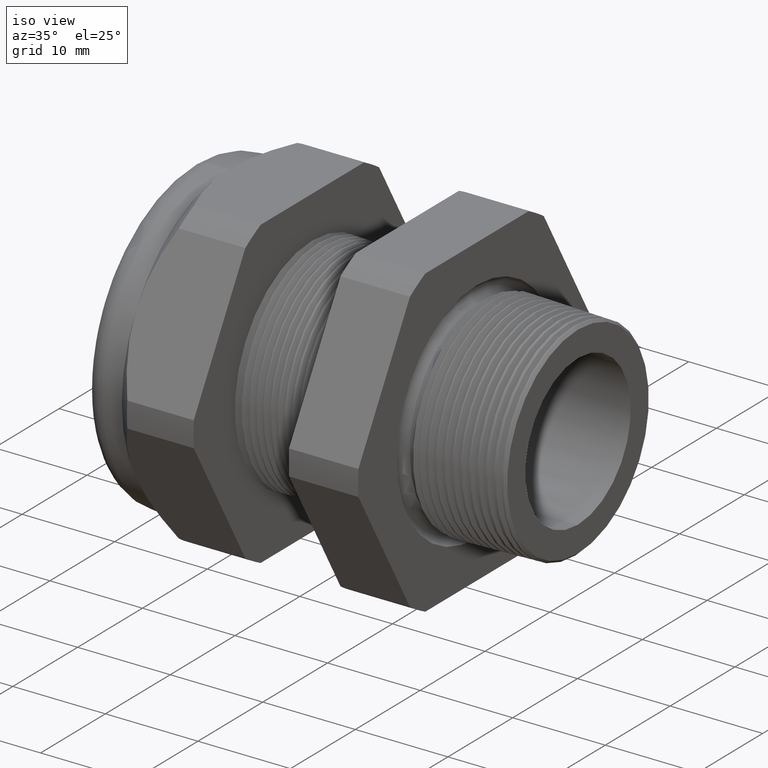
[diagram: clean part render]
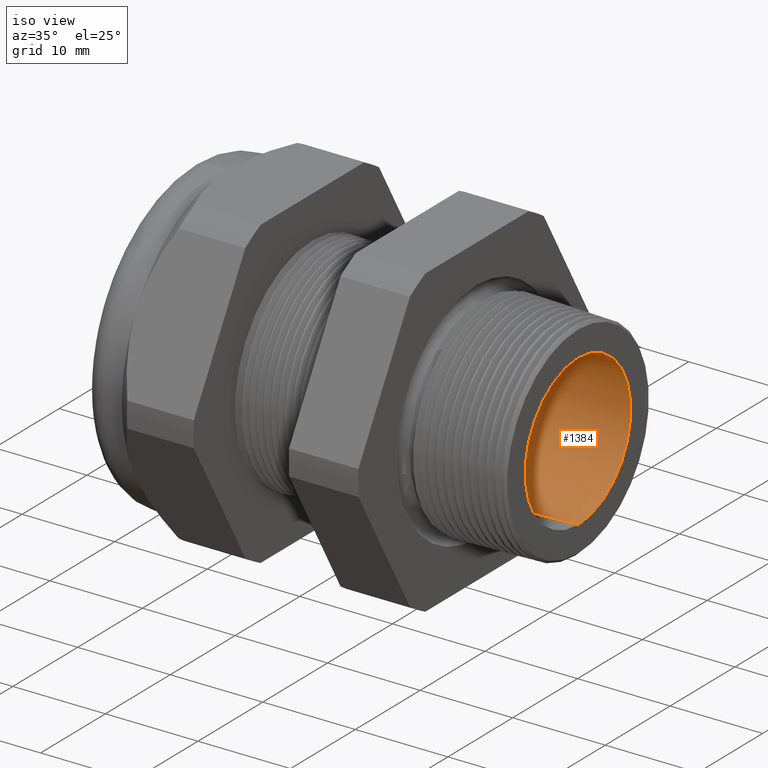
[diagram: same view with one face highlighted and labeled with its STEP entity id]
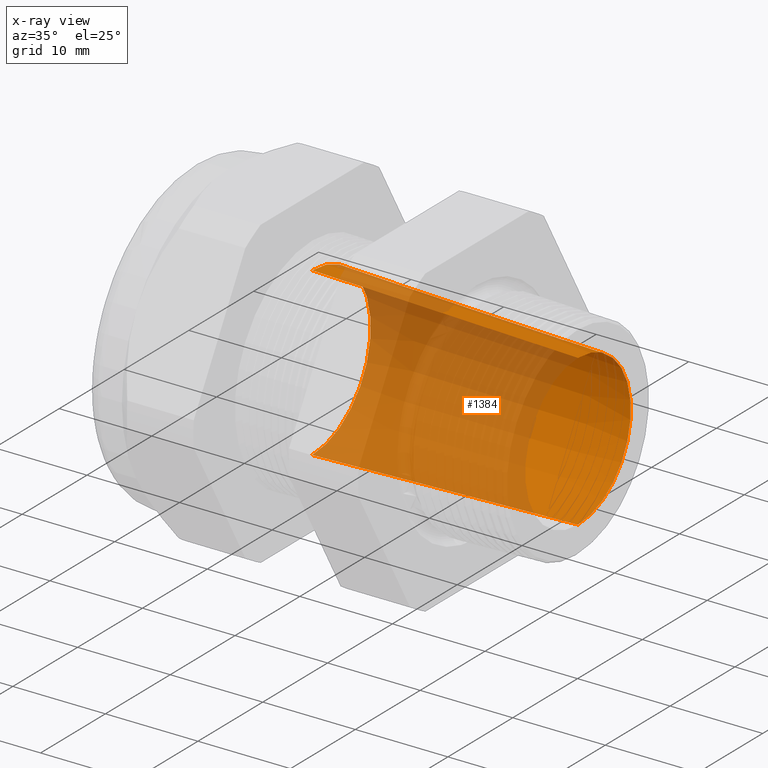
[diagram: x-ray of the same camera — body ghosted, the highlighted face saturated]
A machine part, iso view. The second image highlights one B-rep face of the part: STEP entity #1384.
The next image is the same camera in x-ray: the body ghosted, the highlighted face saturated — about 69% of this face is hidden behind the body in this view.
In plain terms, the highlighted conical surface has half-angle 1.753 deg.
Its self-contained STEP definition (entity closure, byte-faithful):
#719 = VERTEX_POINT ( 'NONE', #3280 ) ;
#720 = VERTEX_POINT ( 'NONE', #3279 ) ;
#775 = EDGE_CURVE ( 'NONE', #720, #776, #3365, .T. ) ;
#776 = VERTEX_POINT ( 'NONE', #3361 ) ;
#779 = VERTEX_POINT ( 'NONE', #3355 ) ;
#781 = EDGE_CURVE ( 'NONE', #719, #779, #3354, .T. ) ;
#1383 = EDGE_CURVE ( 'NONE', #776, #779, #4569, .T. ) ;
#1384 = ADVANCED_FACE ( 'NONE', ( #4564 ), #4563, .F. ) ;
#1385 = EDGE_LOOP ( 'NONE', ( #1386, #1387, #1389, #1390 ) ) ;
#1386 = ORIENTED_EDGE ( 'NONE', *, *, #775, .F. ) ;
#1387 = ORIENTED_EDGE ( 'NONE', *, *, #1388, .T. ) ;
#1388 = EDGE_CURVE ( 'NONE', #720, #719, #4562, .T. ) ;
#1389 = ORIENTED_EDGE ( 'NONE', *, *, #781, .T. ) ;
#1390 = ORIENTED_EDGE ( 'NONE', *, *, #1383, .F. ) ;
#3279 = CARTESIAN_POINT ( 'NONE',  ( 0.1200000000000000200, 4.135642411978520400E-017, -0.3204016610924743100 ) ) ;
#3280 = CARTESIAN_POINT ( 'NONE',  ( 0.1200000000000000200, 0.0000000000000000000, 0.3204016610924743100 ) ) ;
#3351 = DIRECTION ( 'NONE',  ( -0.9995318591926351000, 0.0000000000000000000, 0.03059513783126741000 ) ) ;
#3352 = VECTOR ( 'NONE', #3351, 39.37007874015748900 ) ;
#3353 = CARTESIAN_POINT ( 'NONE',  ( -1.010314960629921100, 0.0000000000000000000, 0.3549999999999999800 ) ) ;
#3354 = LINE ( 'NONE', #3353, #3352 ) ;
#3355 = CARTESIAN_POINT ( 'NONE',  ( -1.010314960629921100, 4.347496136973103500E-017, 0.3549999999999999800 ) ) ;
#3361 = CARTESIAN_POINT ( 'NONE',  ( -1.010314960629921100, 0.0000000000000000000, -0.3549999999999999800 ) ) ;
#3362 = DIRECTION ( 'NONE',  ( -0.9995318591926351000, 3.746823761453372400E-018, -0.03059513783126741000 ) ) ;
#3363 = VECTOR ( 'NONE', #3362, 39.37007874015748900 ) ;
#3364 = CARTESIAN_POINT ( 'NONE',  ( -1.010314960629921100, 4.347496136973103500E-017, -0.3549999999999999800 ) ) ;
#3365 = LINE ( 'NONE', #3364, #3363 ) ;
#4554 = DIRECTION ( 'NONE',  ( 0.0000000000000000000, 0.0000000000000000000, -1.000000000000000000 ) ) ;
#4555 = DIRECTION ( 'NONE',  ( 1.000000000000000000, 0.0000000000000000000, 0.0000000000000000000 ) ) ;
#4556 = CARTESIAN_POINT ( 'NONE',  ( 0.1200000000000000200, 0.0000000000000000000, 0.0000000000000000000 ) ) ;
#4557 = AXIS2_PLACEMENT_3D ( 'NONE', #4556, #4555, #4554 ) ;
#4558 = DIRECTION ( 'NONE',  ( 0.0000000000000000000, 0.0000000000000000000, 1.000000000000000000 ) ) ;
#4559 = DIRECTION ( 'NONE',  ( -1.000000000000000000, 0.0000000000000000000, 0.0000000000000000000 ) ) ;
#4560 = CARTESIAN_POINT ( 'NONE',  ( -1.010314960629921100, 0.0000000000000000000, 0.0000000000000000000 ) ) ;
#4561 = AXIS2_PLACEMENT_3D ( 'NONE', #4560, #4559, #4558 ) ;
#4562 = CIRCLE ( 'NONE', #4557, 0.3204016610924743100 ) ;
#4563 = CONICAL_SURFACE ( 'NONE', #4561, 0.3549999999999999800, 0.03059991300296905500 ) ;
#4564 = FACE_OUTER_BOUND ( 'NONE', #1385, .T. ) ;
#4565 = DIRECTION ( 'NONE',  ( 0.0000000000000000000, 0.0000000000000000000, -1.000000000000000000 ) ) ;
#4566 = DIRECTION ( 'NONE',  ( 1.000000000000000000, 0.0000000000000000000, 0.0000000000000000000 ) ) ;
#4567 = CARTESIAN_POINT ( 'NONE',  ( -1.010314960629921100, 0.0000000000000000000, 0.0000000000000000000 ) ) ;
#4568 = AXIS2_PLACEMENT_3D ( 'NONE', #4567, #4566, #4565 ) ;
#4569 = CIRCLE ( 'NONE', #4568, 0.3549999999999999800 ) ;